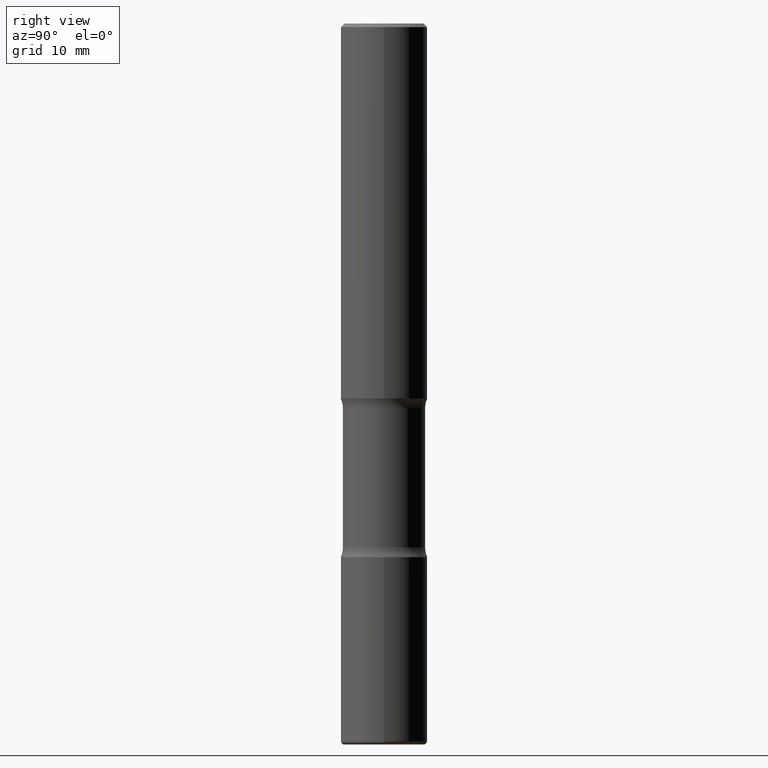
[diagram: clean part render]
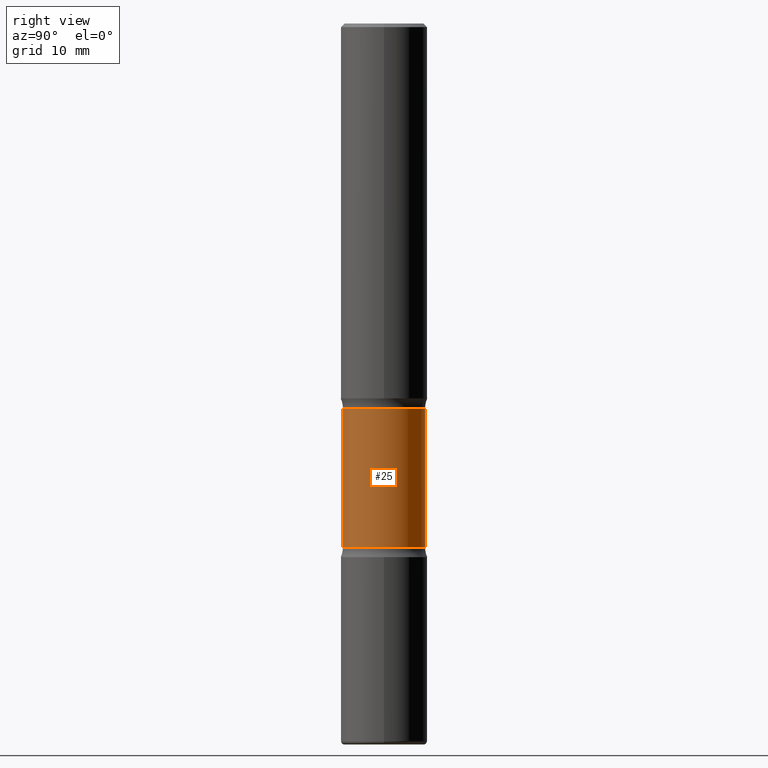
[diagram: same view with one face highlighted and labeled with its STEP entity id]
A machine part, right view. The second image highlights one B-rep face of the part: STEP entity #25.
In plain terms, the highlighted cylindrical surface (partial cylindrical patch) has radius 5.6998 mm, axis along (0, -0, -1).
Its self-contained STEP definition (entity closure, byte-faithful):
#4 = ORIENTED_EDGE ( 'NONE', *, *, #546, .T. ) ;
#13 = ORIENTED_EDGE ( 'NONE', *, *, #554, .F. ) ;
#25 = ADVANCED_FACE ( 'NONE', ( #37 ), #371, .T. ) ;
#29 = CARTESIAN_POINT ( 'NONE',  ( 9.710227154047748282E-29, -1.362793696358492956E-14, -3.937000000000000277 ) ) ;
#37 = FACE_OUTER_BOUND ( 'NONE', #411, .T. ) ;
#41 = LINE ( 'NONE', #208, #346 ) ;
#48 = CARTESIAN_POINT ( 'NONE',  ( 1.566976824872894642E-15, 0.2243999999999863049, -3.937000000000000721 ) ) ;
#95 = DIRECTION ( 'NONE',  ( 2.525985086076564115E-29, -3.376177443336566513E-15, -1.000000000000000000 ) ) ;
#129 = CARTESIAN_POINT ( 'NONE',  ( -1.579972688886734072E-15, -0.2244000000000073713, -2.100216601173594544 ) ) ;
#141 = AXIS2_PLACEMENT_3D ( 'NONE', #321, #431, #551 ) ;
#146 = ORIENTED_EDGE ( 'NONE', *, *, #362, .T. ) ;
#204 = CARTESIAN_POINT ( 'NONE',  ( 1.566976824872848494E-15, 0.2243999999999925499, -2.100216601173596320 ) ) ;
#208 = CARTESIAN_POINT ( 'NONE',  ( -1.539495750699834052E-15, -0.2244000000000135608, -3.936999999999999389 ) ) ;
#213 = VERTEX_POINT ( 'NONE', #441 ) ;
#223 = AXIS2_PLACEMENT_3D ( 'NONE', #497, #322, #331 ) ;
#249 = DIRECTION ( 'NONE',  ( 2.525985086076564115E-29, -3.376177443336566513E-15, -1.000000000000000000 ) ) ;
#268 = VERTEX_POINT ( 'NONE', #204 ) ;
#310 = AXIS2_PLACEMENT_3D ( 'NONE', #29, #325, #538 ) ;
#321 = CARTESIAN_POINT ( 'NONE',  ( 5.070539682259229331E-29, -7.426630284172150130E-15, -2.100216601173595432 ) ) ;
#322 = DIRECTION ( 'NONE',  ( 2.525985086076564115E-29, -3.376177443336566513E-15, -1.000000000000000000 ) ) ;
#325 = DIRECTION ( 'NONE',  ( 2.525985086076564115E-29, -3.376177443336566513E-15, -1.000000000000000000 ) ) ;
#331 = DIRECTION ( 'NONE',  ( 6.982962677686265922E-15, 1.000000000000000000, -2.434802133390609421E-15 ) ) ;
#344 = ORIENTED_EDGE ( 'NONE', *, *, #372, .F. ) ;
#346 = VECTOR ( 'NONE', #95, 39.37007874015748143 ) ;
#362 = EDGE_CURVE ( 'NONE', #385, #465, #41, .T. ) ;
#371 = CYLINDRICAL_SURFACE ( 'NONE', #310, 0.2243999999999999329 ) ;
#372 = EDGE_CURVE ( 'NONE', #213, #465, #413, .T. ) ;
#377 = VECTOR ( 'NONE', #249, 39.37007874015748143 ) ;
#385 = VERTEX_POINT ( 'NONE', #129 ) ;
#411 = EDGE_LOOP ( 'NONE', ( #4, #146, #344, #13 ) ) ;
#413 = CIRCLE ( 'NONE', #223, 0.2243999999999999606 ) ;
#424 = CARTESIAN_POINT ( 'NONE',  ( -1.579972688886713168E-15, -0.2244000000000099804, -2.860383398826404466 ) ) ;
#431 = DIRECTION ( 'NONE',  ( 2.525985086076564115E-29, -3.376177443336566513E-15, -1.000000000000000000 ) ) ;
#441 = CARTESIAN_POINT ( 'NONE',  ( 1.566976824872867821E-15, 0.2243999999999899686, -2.860383398826405799 ) ) ;
#465 = VERTEX_POINT ( 'NONE', #424 ) ;
#468 = LINE ( 'NONE', #48, #377 ) ;
#497 = CARTESIAN_POINT ( 'NONE',  ( 6.990709676060807691E-29, -9.993088279580958225E-15, -2.860383398826405354 ) ) ;
#507 = CIRCLE ( 'NONE', #141, 0.2243999999999999606 ) ;
#538 = DIRECTION ( 'NONE',  ( 6.982962677686265922E-15, 1.000000000000000000, -2.434802133390609815E-15 ) ) ;
#546 = EDGE_CURVE ( 'NONE', #268, #385, #507, .T. ) ;
#551 = DIRECTION ( 'NONE',  ( 6.982962677686265922E-15, 1.000000000000000000, -3.652203200085913934E-15 ) ) ;
#554 = EDGE_CURVE ( 'NONE', #268, #213, #468, .T. ) ;